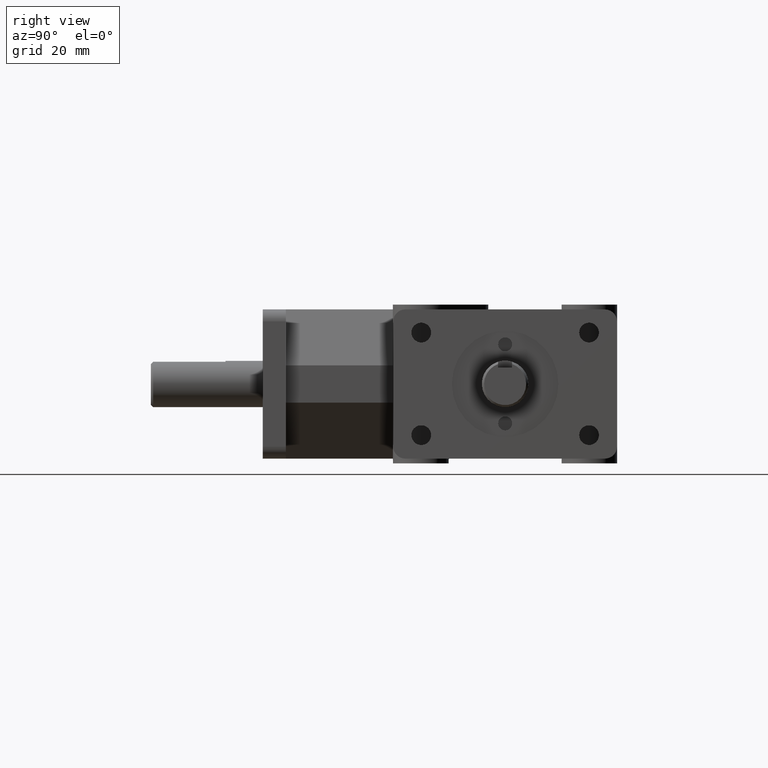
[diagram: clean part render]
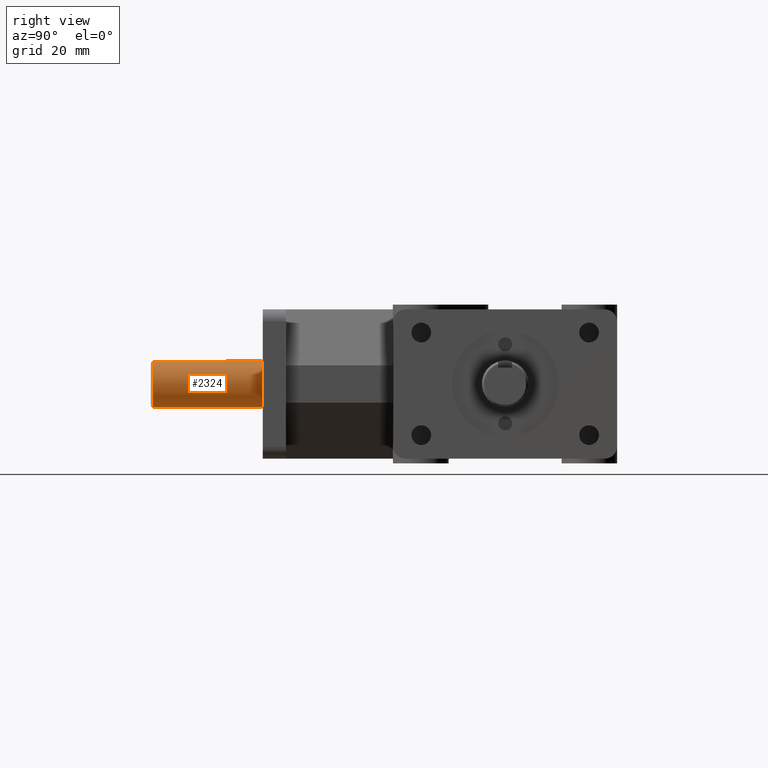
[diagram: same view with one face highlighted and labeled with its STEP entity id]
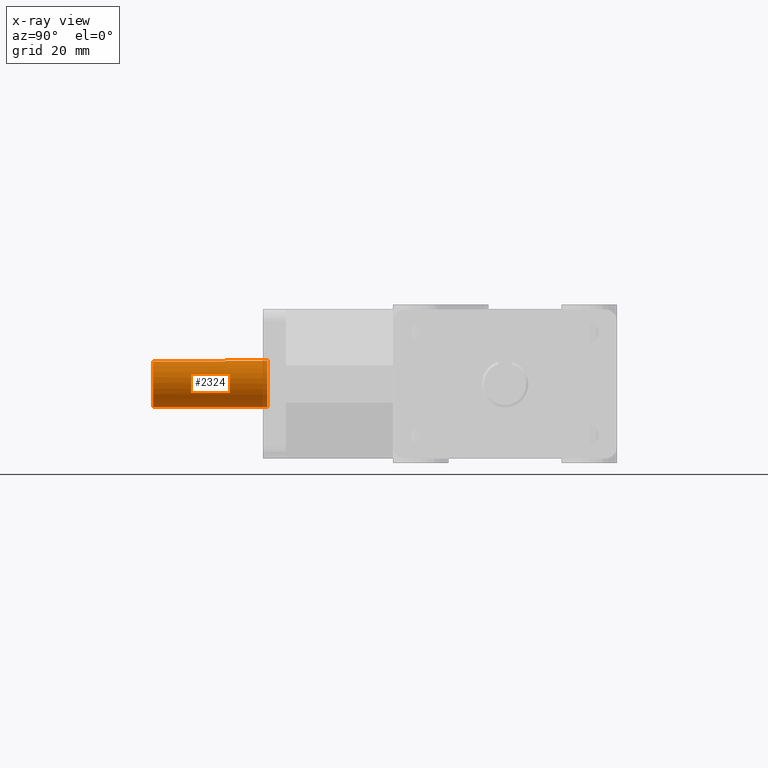
[diagram: x-ray of the same camera — body ghosted, the highlighted face saturated]
A machine part, right view. The second image highlights one B-rep face of the part: STEP entity #2324.
The next image is the same camera in x-ray: the body ghosted, the highlighted face saturated — about 4% of this face is hidden behind the body in this view.
In plain terms, the highlighted cylindrical surface (bore or boss wall) has radius 7.9375 mm, axis along (0, -1, 0).
Its self-contained STEP definition (entity closure, byte-faithful):
#205=FACE_OUTER_BOUND('',#357,.T.);
#357=EDGE_LOOP('',(#1862,#1863,#1864,#1865,#1866,#1867,#1868,#1869));
#578=LINE('',#3774,#800);
#579=LINE('',#3777,#801);
#580=LINE('',#3778,#802);
#800=VECTOR('',#3039,1.);
#801=VECTOR('',#3042,1.);
#802=VECTOR('',#3043,0.3125);
#915=CIRCLE('',#2448,0.3125);
#969=CIRCLE('',#2540,0.3125);
#970=CIRCLE('',#2541,0.3125);
#972=CIRCLE('',#2544,0.3125);
#1021=VERTEX_POINT('',#3406);
#1159=VERTEX_POINT('',#3759);
#1160=VERTEX_POINT('',#3763);
#1161=VERTEX_POINT('',#3765);
#1163=VERTEX_POINT('',#3773);
#1164=VERTEX_POINT('',#3775);
#1251=EDGE_CURVE('',#1021,#1021,#915,.T.);
#1425=EDGE_CURVE('',#1159,#1160,#969,.T.);
#1426=EDGE_CURVE('',#1160,#1161,#970,.T.);
#1429=EDGE_CURVE('',#1159,#1163,#578,.T.);
#1430=EDGE_CURVE('',#1163,#1164,#972,.T.);
#1431=EDGE_CURVE('',#1164,#1161,#579,.T.);
#1432=EDGE_CURVE('',#1160,#1021,#580,.T.);
#1862=ORIENTED_EDGE('',*,*,#1425,.F.);
#1863=ORIENTED_EDGE('',*,*,#1429,.T.);
#1864=ORIENTED_EDGE('',*,*,#1430,.T.);
#1865=ORIENTED_EDGE('',*,*,#1431,.T.);
#1866=ORIENTED_EDGE('',*,*,#1426,.F.);
#1867=ORIENTED_EDGE('',*,*,#1432,.T.);
#1868=ORIENTED_EDGE('',*,*,#1251,.F.);
#1869=ORIENTED_EDGE('',*,*,#1432,.F.);
#2248=CYLINDRICAL_SURFACE('',#2543,0.3125);
#2324=ADVANCED_FACE('',(#205),#2248,.T.);
#2448=AXIS2_PLACEMENT_3D('',#3407,#2730,#2731);
#2540=AXIS2_PLACEMENT_3D('',#3764,#3031,#3032);
#2541=AXIS2_PLACEMENT_3D('',#3766,#3033,#3034);
#2543=AXIS2_PLACEMENT_3D('',#3772,#3037,#3038);
#2544=AXIS2_PLACEMENT_3D('',#3776,#3040,#3041);
#2730=DIRECTION('center_axis',(0.,1.,0.));
#2731=DIRECTION('ref_axis',(1.,0.,0.));
#3031=DIRECTION('center_axis',(0.,-1.,0.));
#3032=DIRECTION('ref_axis',(1.,0.,0.));
#3033=DIRECTION('center_axis',(0.,-1.,0.));
#3034=DIRECTION('ref_axis',(1.,0.,0.));
#3037=DIRECTION('center_axis',(0.,-1.,0.));
#3038=DIRECTION('ref_axis',(1.,0.,0.));
#3039=DIRECTION('',(0.,1.,0.));
#3040=DIRECTION('center_axis',(0.,1.,0.));
#3041=DIRECTION('ref_axis',(1.,0.,0.));
#3042=DIRECTION('',(0.,-1.,0.));
#3043=DIRECTION('',(0.,1.,0.));
#3406=CARTESIAN_POINT('',(-0.3125,0.0599999999999999,-3.82702124733548E-17));
#3407=CARTESIAN_POINT('Origin',(0.,0.0599999999999999,0.));
#3759=CARTESIAN_POINT('',(-0.09375,-1.47,0.298106000442796));
#3763=CARTESIAN_POINT('',(-0.3125,-1.47,-3.82702124733548E-17));
#3764=CARTESIAN_POINT('Origin',(0.,-1.47,0.));
#3765=CARTESIAN_POINT('',(0.09375,-1.47,0.298106000442796));
#3766=CARTESIAN_POINT('Origin',(0.,-1.47,0.));
#3772=CARTESIAN_POINT('Origin',(0.,0.,0.));
#3773=CARTESIAN_POINT('',(-0.09375,-0.5,0.298106000442796));
#3774=CARTESIAN_POINT('',(-0.09375,0.,0.298106000442796));
#3775=CARTESIAN_POINT('',(0.09375,-0.5,0.298106000442796));
#3776=CARTESIAN_POINT('Origin',(0.,-0.5,0.));
#3777=CARTESIAN_POINT('',(0.09375,0.,0.298106000442796));
#3778=CARTESIAN_POINT('',(-0.3125,0.,-3.82702124733548E-17));